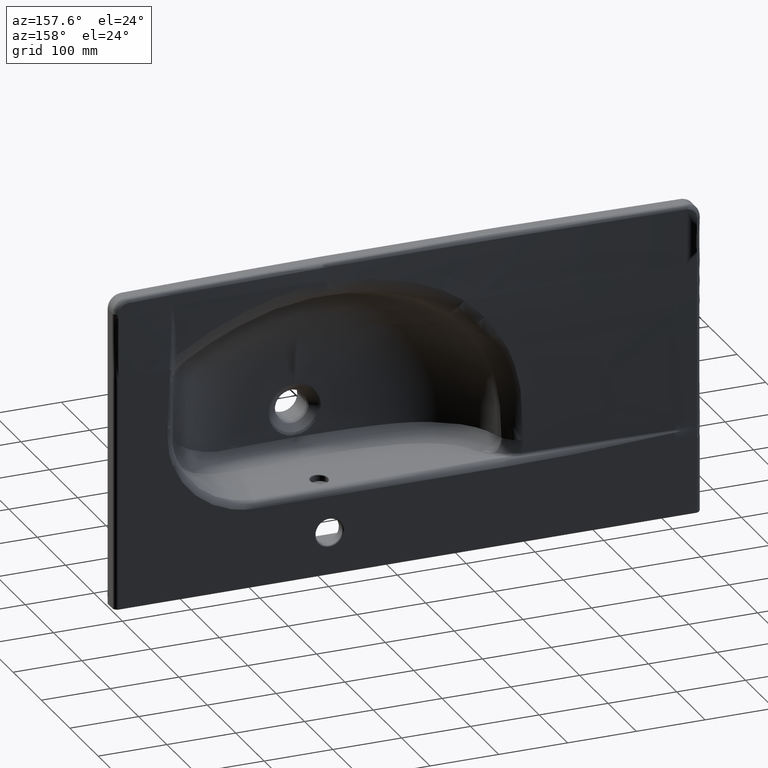
[diagram: clean part render]
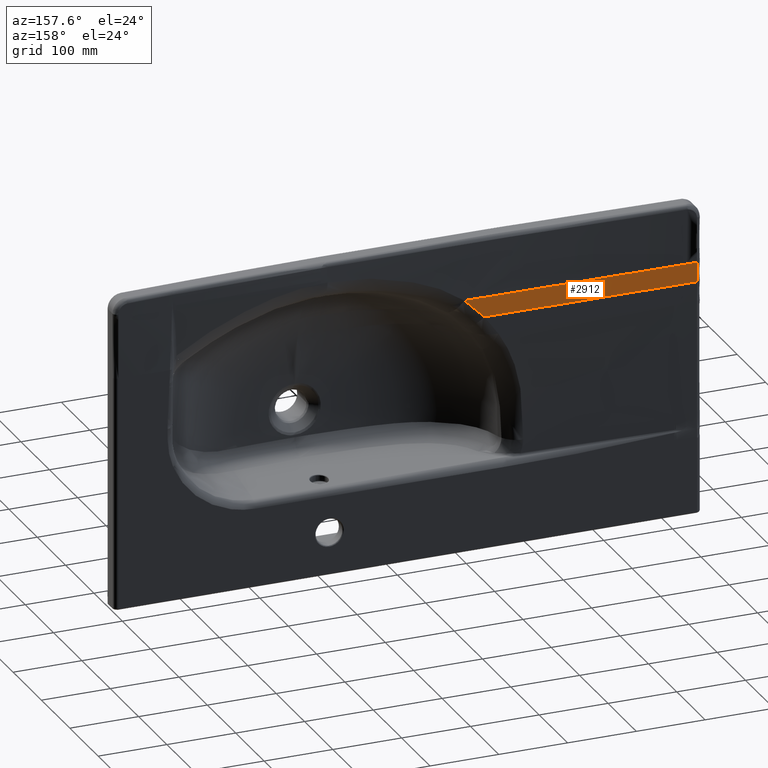
[diagram: same view with one face highlighted and labeled with its STEP entity id]
A machine part, auxiliary view. The second image highlights one B-rep face of the part: STEP entity #2912.
In plain terms, the highlighted face is a freeform B-spline surface patch.
Its self-contained STEP definition (entity closure, byte-faithful):
#2351=B_SPLINE_SURFACE_WITH_KNOTS('',3,3,((#50336,#50337,#50338,#50339,
#50340,#50341,#50342),(#50343,#50344,#50345,#50346,#50347,#50348,#50349),
(#50350,#50351,#50352,#50353,#50354,#50355,#50356),(#50357,#50358,#50359,
#50360,#50361,#50362,#50363),(#50364,#50365,#50366,#50367,#50368,#50369,
#50370),(#50371,#50372,#50373,#50374,#50375,#50376,#50377)),
 .UNSPECIFIED.,.F.,.F.,.F.,(4,1,1,4),(4,2,1,4),(0.,0.5,0.75,1.),(0.,0.25,
0.5,1.),.UNSPECIFIED.);
#2912=ADVANCED_FACE('',(#4633),#2351,.F.);
#4633=FACE_OUTER_BOUND('',#5939,.T.);
#5939=EDGE_LOOP('',(#8553,#8554,#8555,#8556,#8557,#8558,#8559));
#8553=ORIENTED_EDGE('',*,*,#15571,.T.);
#8554=ORIENTED_EDGE('',*,*,#15570,.T.);
#8555=ORIENTED_EDGE('',*,*,#15577,.T.);
#8556=ORIENTED_EDGE('',*,*,#16027,.T.);
#8557=ORIENTED_EDGE('',*,*,#16028,.T.);
#8558=ORIENTED_EDGE('',*,*,#16029,.F.);
#8559=ORIENTED_EDGE('',*,*,#15927,.T.);
#13700=VERTEX_POINT('',#41972);
#13701=VERTEX_POINT('',#41978);
#13702=VERTEX_POINT('',#41983);
#13705=VERTEX_POINT('',#42221);
#13908=VERTEX_POINT('',#47749);
#13965=VERTEX_POINT('',#50296);
#13966=VERTEX_POINT('',#50331);
#15570=EDGE_CURVE('',#13701,#13700,#18588,.T.);
#15571=EDGE_CURVE('',#13702,#13701,#18589,.T.);
#15577=EDGE_CURVE('',#13700,#13705,#18595,.T.);
#15927=EDGE_CURVE('',#13908,#13702,#18852,.T.);
#16027=EDGE_CURVE('',#13705,#13965,#18925,.T.);
#16028=EDGE_CURVE('',#13965,#13966,#18926,.T.);
#16029=EDGE_CURVE('',#13908,#13966,#18927,.T.);
#18588=B_SPLINE_CURVE_WITH_KNOTS('',3,(#41973,#41974,#41975,#41976,#41977),
 .UNSPECIFIED.,.F.,.F.,(4,1,4),(0.,3.79834812416982E-005,1.),
 .UNSPECIFIED.);
#18589=B_SPLINE_CURVE_WITH_KNOTS('',3,(#41979,#41980,#41981,#41982),
 .UNSPECIFIED.,.F.,.F.,(4,4),(0.,1.),.UNSPECIFIED.);
#18595=B_SPLINE_CURVE_WITH_KNOTS('',3,(#42222,#42223,#42224,#42225),
 .UNSPECIFIED.,.F.,.F.,(4,4),(0.,1.),.UNSPECIFIED.);
#18852=B_SPLINE_CURVE_WITH_KNOTS('',3,(#47754,#47755,#47756,#47757,#47758,
#47759,#47760),.UNSPECIFIED.,.F.,.F.,(4,3,4),(0.,0.577432014493051,1.),
 .UNSPECIFIED.);
#18925=B_SPLINE_CURVE_WITH_KNOTS('',3,(#50297,#50298,#50299,#50300,#50301,
#50302),.UNSPECIFIED.,.F.,.F.,(4,2,4),(0.,0.5,1.),.UNSPECIFIED.);
#18926=B_SPLINE_CURVE_WITH_KNOTS('',3,(#50327,#50328,#50329,#50330),
 .UNSPECIFIED.,.F.,.F.,(4,4),(0.,1.),.UNSPECIFIED.);
#18927=B_SPLINE_CURVE_WITH_KNOTS('',3,(#50332,#50333,#50334,#50335),
 .UNSPECIFIED.,.F.,.F.,(4,4),(0.,1.),.UNSPECIFIED.);
#41972=CARTESIAN_POINT('',(-520.096721045464,-299.673543201466,-0.139390806277187));
#41973=CARTESIAN_POINT('',(-535.322937285937,-299.682186273175,0.0252053097648657));
#41974=CARTESIAN_POINT('',(-535.322744504615,-299.682186162433,0.0252031966766044));
#41975=CARTESIAN_POINT('',(-530.247345536324,-299.679270626466,-0.0304285436361542));
#41976=CARTESIAN_POINT('',(-525.171940174702,-299.676394927893,-0.0853001411718515));
#41977=CARTESIAN_POINT('',(-520.096721309893,-299.673558813708,-0.139416423608433));
#41978=CARTESIAN_POINT('',(-535.322937285937,-299.682186273175,0.0252053097648699));
#41979=CARTESIAN_POINT('',(-535.411229552149,-299.682236996244,0.0261731635610249));
#41980=CARTESIAN_POINT('',(-535.38179879696,-299.682220087215,0.0258505200732122));
#41981=CARTESIAN_POINT('',(-535.352368041555,-299.682203179525,0.0255279021391536));
#41982=CARTESIAN_POINT('',(-535.322937285936,-299.682186273175,0.0252053097648659));
#41983=CARTESIAN_POINT('',(-535.411229500295,-299.682236996185,0.026173163760568));
#42221=CARTESIAN_POINT('',(-198.378245463887,-299.543193847152,-2.62547480484633));
#42222=CARTESIAN_POINT('',(-520.096721309893,-299.673558813708,-0.139416423608434));
#42223=CARTESIAN_POINT('',(-412.859702682704,-299.61363303753,-1.28286834997273));
#42224=CARTESIAN_POINT('',(-305.619878182385,-299.571331233102,-2.0900348623724));
#42225=CARTESIAN_POINT('',(-198.378267496383,-299.543264810019,-2.62557411755788));
#47749=CARTESIAN_POINT('',(-535.433075971971,-271.284438985899,0.0147663743214322));
#47754=CARTESIAN_POINT('',(-535.433075971971,-271.284438985899,0.0147663743214304));
#47755=CARTESIAN_POINT('',(-535.431379520996,-276.750373074795,0.0191930415590039));
#47756=CARTESIAN_POINT('',(-535.427898501176,-282.21630439884,0.0267223978681671));
#47757=CARTESIAN_POINT('',(-535.423233142565,-287.682237846901,0.0294996767534399));
#47758=CARTESIAN_POINT('',(-535.419819007698,-291.682237744851,0.0315321045836047));
#47759=CARTESIAN_POINT('',(-535.415765039235,-295.682240748051,0.0311142646387942));
#47760=CARTESIAN_POINT('',(-535.411229552147,-299.682236996244,0.0261731635609985));
#50296=CARTESIAN_POINT('',(-227.188368756696,-271.181424432983,-1.92932676324877));
#50297=CARTESIAN_POINT('',(-198.378305946391,-299.543154992974,-2.62557019889825));
#50298=CARTESIAN_POINT('',(-203.540201784669,-295.183718180137,-2.4518230680062));
#50299=CARTESIAN_POINT('',(-208.488337083882,-290.606577618692,-2.30107065113861));
#50300=CARTESIAN_POINT('',(-218.135885320257,-281.198054264794,-2.06427510034403));
#50301=CARTESIAN_POINT('',(-222.767368871632,-276.297706975278,-1.97666021754141));
#50302=CARTESIAN_POINT('',(-227.187772804876,-271.181954722558,-1.92933242159936));
#50327=CARTESIAN_POINT('',(-227.188240489947,-271.181954845894,-1.92932986633189));
#50328=CARTESIAN_POINT('',(-329.918204784437,-271.209046343404,-1.36804920693736));
#50329=CARTESIAN_POINT('',(-432.629662293355,-271.239029287745,-0.737912342176224));
#50330=CARTESIAN_POINT('',(-535.323515629902,-271.284390565601,0.0139641813073916));
#50331=CARTESIAN_POINT('',(-535.323515629902,-271.284390565601,0.013964181307394));
#50332=CARTESIAN_POINT('',(-535.433075971971,-271.284438985899,0.0147663743214366));
#50333=CARTESIAN_POINT('',(-535.396555860176,-271.284422844014,0.0144989622534221));
#50334=CARTESIAN_POINT('',(-535.360035746153,-271.284406703915,0.0142315645803105));
#50335=CARTESIAN_POINT('',(-535.323515629902,-271.284390565601,0.0139641813073923));
#50336=CARTESIAN_POINT('',(590.015610096444,-299.511262058164,-3.2362230002479));
#50337=CARTESIAN_POINT('',(535.783137324871,-289.966929990217,-4.19223386367759));
#50338=CARTESIAN_POINT('',(481.501728595254,-280.44811418036,-4.74760120319563));
#50339=CARTESIAN_POINT('',(372.841039219899,-261.461515076813,-5.05704883440699));
#50340=CARTESIAN_POINT('',(209.988732435203,-233.093908678087,-6.18140678593857));
#50341=CARTESIAN_POINT('',(47.5526074855207,-205.063179049175,-9.28632425161641));
#50342=CARTESIAN_POINT('',(-60.7381424809345,-186.376025963233,-11.3562692287346));
#50343=CARTESIAN_POINT('',(339.933607082775,-299.493725847358,-3.57083383554258));
#50344=CARTESIAN_POINT('',(298.899669267018,-289.996195401707,-3.87447733711055));
#50345=CARTESIAN_POINT('',(257.841605802137,-280.504795922691,-4.0318619231909));
#50346=CARTESIAN_POINT('',(175.677227574104,-261.534258897919,-4.05411326437576));
#50347=CARTESIAN_POINT('',(52.4948440994253,-233.166975862635,-4.79684506549096));
#50348=CARTESIAN_POINT('',(-70.4949877731417,-205.065260332992,-7.66764123462152));
#50349=CARTESIAN_POINT('',(-152.48820902152,-186.330783313229,-9.58150534737503));
#50350=CARTESIAN_POINT('',(-35.1893974377277,-299.467421531148,-4.07275008848459));
#50351=CARTESIAN_POINT('',(-56.42553281976,-290.040093518943,-3.39784254725995));
#50352=CARTESIAN_POINT('',(-77.6485783875395,-280.589818536187,-2.95825300318387));
#50353=CARTESIAN_POINT('',(-120.068489894587,-261.643374629577,-2.54970990932889));
#50354=CARTESIAN_POINT('',(-183.745988404241,-233.276576639458,-2.72000248481957));
#50355=CARTESIAN_POINT('',(-247.566380661135,-205.068382258717,-5.23961670912917));
#50356=CARTESIAN_POINT('',(-290.113308832399,-186.262919338224,-6.91935952533565));
#50357=CARTESIAN_POINT('',(-535.326238815056,-299.658010115325,-0.436103262778844));
#50358=CARTESIAN_POINT('',(-530.099797679638,-290.18691664913,-0.310061058914242));
#50359=CARTESIAN_POINT('',(-524.881207809672,-280.72399948292,-0.239961316159027));
#50360=CARTESIAN_POINT('',(-514.459730600645,-261.814517750474,-0.211646752867313));
#50361=CARTESIAN_POINT('',(-498.808666159513,-233.430821625154,-0.319587243367803));
#50362=CARTESIAN_POINT('',(-483.101055835609,-204.988704919886,-0.878764740182798));
#50363=CARTESIAN_POINT('',(-472.629315619672,-186.027293783041,-1.25154973805945));
#50364=CARTESIAN_POINT('',(-785.379140011384,-299.850007709907,3.2274290832029));
#50365=CARTESIAN_POINT('',(-766.957985477585,-290.378485391798,2.39304280822356));
#50366=CARTESIAN_POINT('',(-748.523723131821,-280.897842079482,1.83141091180812));
#50367=CARTESIAN_POINT('',(-711.628982816365,-261.918313466439,1.2536558761052));
#50368=CARTESIAN_POINT('',(-656.312365908467,-233.472487627935,0.840699703023011));
#50369=CARTESIAN_POINT('',(-601.072229696415,-205.097063032605,1.7887726713579));
#50370=CARTESIAN_POINT('',(-564.245472221716,-186.180113302385,2.42082131691448));
#50371=CARTESIAN_POINT('',(-910.405590609549,-299.946006507198,5.05919525619379));
#50372=CARTESIAN_POINT('',(-885.387079376558,-290.474269763132,3.74459474179245));
#50373=CARTESIAN_POINT('',(-860.344980792896,-280.984763377763,2.86709702579171));
#50374=CARTESIAN_POINT('',(-810.213608924225,-261.970211324422,1.98630719059144));
#50375=CARTESIAN_POINT('',(-735.064215782944,-233.493320629325,1.42084317621842));
#50376=CARTESIAN_POINT('',(-660.057816626818,-205.151242088965,3.12254137712826));
#50377=CARTESIAN_POINT('',(-610.053550522738,-186.256523062058,4.25700684440143));